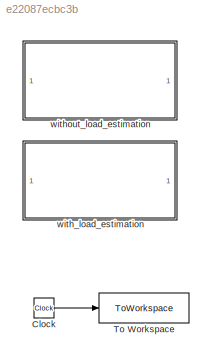
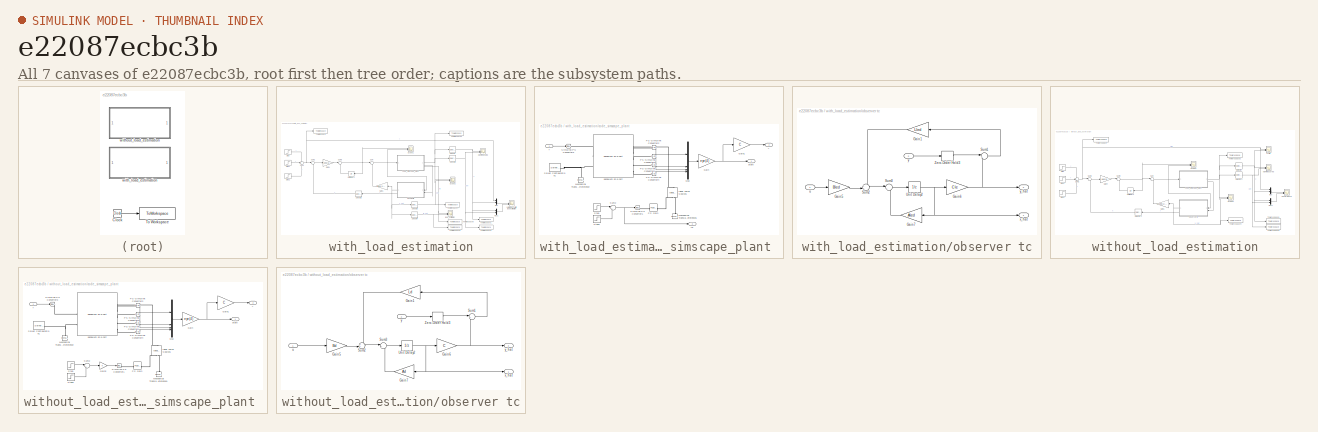
[diagram: thumbnail index - all 7 canvases of the model, root first then tree order]
MODEL slx_e22087ecbc3b
KIND model
CONFIG AbsTol = auto
CONFIG EnableMultiTasking = off
CONFIG FixedStep = auto
CONFIG MaxStep = auto
CONFIG MinStep = auto
CONFIG RelTol = 1e-3
CONFIG SampleTimeConstraint = Unconstrained
CONFIG SolverName = daessc
CONFIG StartTime = 0.0
CONFIG StopTime = simlength
BLOCK [Clock] Clock
BLOCK [ToWorkspace] To Workspace
  FixptAsFi = on
  MaxDataPoints = Nc
  SampleTime = tc
  VariableName = t
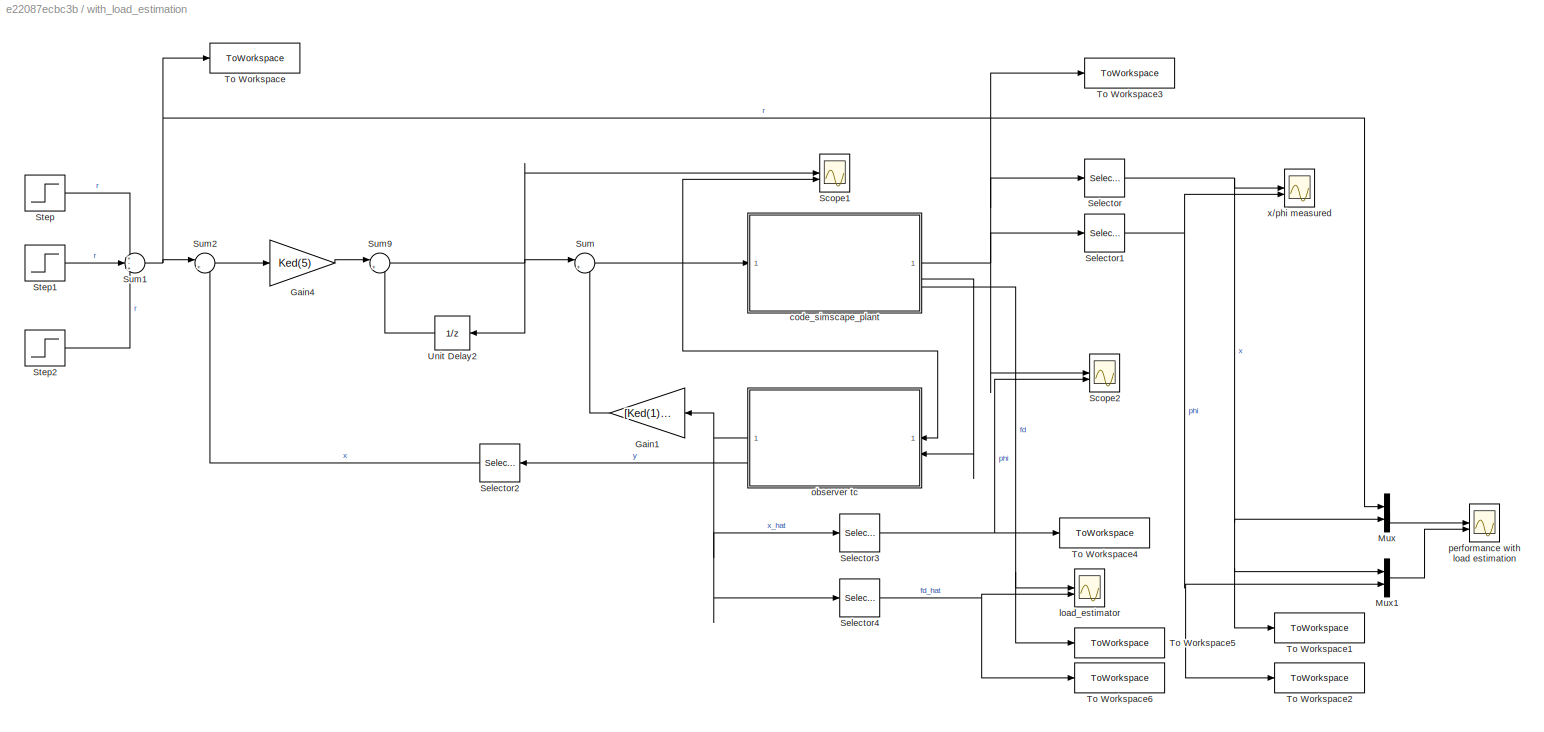
BLOCK [SubSystem] with_load_estimation
BLOCK [Gain] with_load_estimation/Gain1
  Gain = [Ked(1) Ked(2) Ked(3) Ked(4) 0]
  Multiplication = Matrix(K*u)
  NameLocation = top
BLOCK [Gain] with_load_estimation/Gain4
  Gain = Ked(5)
  NameLocation = top
BLOCK [Mux] with_load_estimation/Mux
  DisplayOption = bar
  Inputs = 2
BLOCK [Mux] with_load_estimation/Mux1
  DisplayOption = bar
  Inputs = 2
BLOCK [Scope] with_load_estimation/Scope1
  ActiveDisplayYMaximum = 131887.4556
  ActiveDisplayYMinimum = -131862.66233
  DataLoggingVariableName = ScopeData1
  Floating = off
  GraphicalSettings = {"GraphicalSettings":{"LegacySettings":true,"Style":{"AxesScalingProperties":{"ScaleAxesLimitsAtStop":false},"Style":{"AxesColor":"[0 0 0]","ChannelNames":["",""],"ColorOrder":"[1 1 0.0666666666666667;0.0745098039215686 0.623529411764706 1;1 0.411764705882353 0.16078431372549;0.392156862745098 0.831372549019608 0.0745098039215686;0.717647058823529 0.274509803921569 1;0.0588235294117647 1 1;1 0.074...<+482ch>
  LayoutDimensionsString = [2 1]
  MultipleDisplayCache = [{"MaxYLimMag":131887.4556,"MaxYLimReal":131887.4556,"MinYLimMag":0,"MinYLimReal":-131862.66233,"PlotAsMagnitudePhase":false,"ShowGrid":true,"ShowLegend":true,"Title":"%<SignalLabel>","YLabel":""},{"MaxYLimMag":9.54603,"MaxYLimReal":1013.83988,"MinYLimMag":0,"MinYLimReal":-586.68826,"PlotAsMagnitudePhase":false,"ShowGrid":true,"ShowLegend":true,"Title":"%<SignalLabel>","YLabel":""}]
  NumInputPorts = 2
  ShowLegend = on
  WasSavedAsWebScope = on
BLOCK [Scope] with_load_estimation/Scope2
  ActiveDisplayYMaximum = 2.75481
  ActiveDisplayYMinimum = -2.98633
  ContainerLayout = {"WindowBounds":[384,156,1280,768],"gridDimensions":{"w":1,"h":1},"tileCount":1,"tileCoverage":1,"columnWeights":1,"rowWeights":1,"tileOccupancy":{"children":[{"id":"/with_load_estimation/performance \nwith load estimation"},{"id":"/with_load_estimation/load_estimator"},{"id":"/with_load_estimation/Scope2"},{"id":"/without_load_estimation/performance"},{"id":"/without_load_estimation/Scope2"}]}}  <repeated x5 — deduplicated; at blocks: Scope2, load_estimator, performance with load estimation, performance>
  DataLoggingVariableName = ScopeData2
  Floating = off
  GraphicalSettings = {"GraphicalSettings":{"LegacySettings":true,"Style":{"AxesScalingProperties":{"ScaleAxesLimitsAtStop":false},"Style":{"AxesColor":"[0 0 0]","ChannelNames":["",""],"ColorOrder":"[1 1 0.0666666666666667;0.0745098039215686 0.623529411764706 1;1 0.411764705882353 0.16078431372549;0.392156862745098 0.831372549019608 0.0745098039215686;0.717647058823529 0.274509803921569 1;0.0588235294117647 1 1;1 0.074...<+955ch>
  LayoutDimensionsString = [2 1]
  MultipleDisplayCache = [{"MaxYLimMag":2.98633,"MaxYLimReal":2.75481,"MinYLimMag":0,"MinYLimReal":-2.98633,"PlotAsMagnitudePhase":false,"ShowGrid":true,"ShowLegend":true,"Title":"%<SignalLabel>","YLabel":""},{"MaxYLimMag":11.89829,"MaxYLimReal":2.36213,"MinYLimMag":0,"MinYLimReal":-2.45766,"PlotAsMagnitudePhase":false,"ShowGrid":true,"ShowLegend":true,"Title":"%<SignalLabel>","YLabel":""}]
  NumInputPorts = 2
  ScopeFrameLocation = container
  ShowLegend = on
  Visible = on
  WasSavedAsWebScope = on
  WindowPosition = [384.000000,156.000000,1280.000000,768.000000,]
BLOCK [Selector] with_load_estimation/Selector
  IndexOptions = Index vector (dialog)
  Indices = 1
  InputPortWidth = 4
  OutputSizes = 1
BLOCK [Selector] with_load_estimation/Selector1
  IndexOptions = Index vector (dialog)
  Indices = 3
  InputPortWidth = 4
  OutputSizes = 1
BLOCK [Selector] with_load_estimation/Selector2
  IndexOptions = Index vector (dialog)
  Indices = 1
  InputPortWidth = 2
  NameLocation = top
  OutputSizes = 1
BLOCK [Selector] with_load_estimation/Selector3
  IndexOptions = Index vector (dialog)
  Indices = [1 2 3 4]
  InputPortWidth = 5
  OutputSizes = 1
BLOCK [Selector] with_load_estimation/Selector4
  IndexOptions = Index vector (dialog)
  Indices = 5
  InputPortWidth = 5
  OutputSizes = 1
BLOCK [Step] with_load_estimation/Step
  SampleTime = 0
BLOCK [Step] with_load_estimation/Step1
  After = 2
  SampleTime = 0
  Time = 8
BLOCK [Step] with_load_estimation/Step2
  SampleTime = 0
  Time = 25
BLOCK [Sum] with_load_estimation/Sum
  Inputs = |+-
BLOCK [Sum] with_load_estimation/Sum1
  Inputs = +-+
BLOCK [Sum] with_load_estimation/Sum2
  Inputs = |+-
BLOCK [Sum] with_load_estimation/Sum9
  Inputs = |++
BLOCK [ToWorkspace] with_load_estimation/To Workspace
  FixptAsFi = on
  MaxDataPoints = Nc
  SampleTime = tc
  VariableName = x_ref_le_sim
BLOCK [ToWorkspace] with_load_estimation/To Workspace1
  FixptAsFi = on
  MaxDataPoints = Nc
  SampleTime = tc
  VariableName = x_le_sim
BLOCK [ToWorkspace] with_load_estimation/To Workspace2
  FixptAsFi = on
  MaxDataPoints = Nc
  SampleTime = tc
  VariableName = phi_le_sim
BLOCK [ToWorkspace] with_load_estimation/To Workspace3
  FixptAsFi = on
  MaxDataPoints = Nc
  SampleTime = tc
  VariableName = xstate_le_sim
BLOCK [ToWorkspace] with_load_estimation/To Workspace4
  FixptAsFi = on
  MaxDataPoints = Nc
  SampleTime = tc
  VariableName = xstate_hat_le_sim
BLOCK [ToWorkspace] with_load_estimation/To Workspace5
  FixptAsFi = on
  MaxDataPoints = Nc
  SampleTime = tc
  VariableName = load_sim
BLOCK [ToWorkspace] with_load_estimation/To Workspace6
  FixptAsFi = on
  MaxDataPoints = Nc
  SampleTime = tc
  VariableName = load_hat_sim
BLOCK [UnitDelay] with_load_estimation/Unit Delay2
  HasFrameUpgradeWarning = on
  SampleTime = ts
BLOCK [SubSystem] with_load_estimation/code_simscape_plant 
BLOCK [Gain] with_load_estimation/code_simscape_plant /Gain
  Gain = eye(4)
  Multiplication = Matrix(K*u)
BLOCK [Gain] with_load_estimation/code_simscape_plant /Gain1
  Gain = C
  Multiplication = Matrix(K*u)
BLOCK [Reference] with_load_estimation/code_simscape_plant /Ideal Force Source1  REF=fl_lib/Mechanical/Mechanical Sources/Ideal Force Source
  NameLocation = right
  SourceBlock = fl_lib/Mechanical/Mechanical Sources/Ideal Force Source
  SourceType = Ideal Force Source
BLOCK [Reference] with_load_estimation/code_simscape_plant /Mechanical Translational Reference  REF=fl_lib/Mechanical/Translational
Elements/Mechanical
Translational
Reference
  NameLocation = right
  SourceBlock = fl_lib/Mechanical/Translational\nElements/Mechanical\nTranslational\nReference
  SourceType = Mechanical\nTranslational\nReference
BLOCK [Reference] with_load_estimation/code_simscape_plant /Mechanical Translational Reference1  REF=fl_lib/Mechanical/Translational
Elements/Mechanical
Translational
Reference
  NameLocation = right
  SourceBlock = fl_lib/Mechanical/Translational\nElements/Mechanical\nTranslational\nReference
  SourceType = Mechanical\nTranslational\nReference
BLOCK [Mux] with_load_estimation/code_simscape_plant /Mux
  DisplayOption = bar
BLOCK [Reference] with_load_estimation/code_simscape_plant /PS Gain  REF=fl_lib/Physical Signals/Functions/PS Gain
  SourceBlock = fl_lib/Physical Signals/Functions/PS Gain
  SourceType = PS Gain
BLOCK [Reference] with_load_estimation/code_simscape_plant /PS-Simulink Converter1  REF=nesl_utility/PS-Simulink
Converter
  NameLocation = top
  SourceBlock = nesl_utility/PS-Simulink\nConverter
  SourceType = PS-Simulink\nConverter
BLOCK [Reference] with_load_estimation/code_simscape_plant /PS-Simulink Converter2  REF=nesl_utility/PS-Simulink
Converter
  SourceBlock = nesl_utility/PS-Simulink\nConverter
  SourceType = PS-Simulink\nConverter
BLOCK [Reference] with_load_estimation/code_simscape_plant /PS-Simulink Converter3  REF=nesl_utility/PS-Simulink
Converter
  NameLocation = top
  SourceBlock = nesl_utility/PS-Simulink\nConverter
  SourceType = PS-Simulink\nConverter
BLOCK [Reference] with_load_estimation/code_simscape_plant /PS-Simulink Converter4  REF=nesl_utility/PS-Simulink
Converter
  NameLocation = top
  SourceBlock = nesl_utility/PS-Simulink\nConverter
  SourceType = PS-Simulink\nConverter
BLOCK [Reference] with_load_estimation/code_simscape_plant /Simulink-PS Converter1  REF=nesl_utility/Simulink-PS
Converter
  SourceBlock = nesl_utility/Simulink-PS\nConverter
  SourceType = Simulink-PS\nConverter
BLOCK [Reference] with_load_estimation/code_simscape_plant /Simulink-PS Converter3  REF=nesl_utility/Simulink-PS
Converter
  SourceBlock = nesl_utility/Simulink-PS\nConverter
  SourceType = Simulink-PS\nConverter
BLOCK [Reference] with_load_estimation/code_simscape_plant /Solver Configuration1  REF=nesl_utility/Solver
Configuration
  SourceBlock = nesl_utility/Solver\nConfiguration
  SourceType = Solver\nConfiguration
BLOCK [Step] with_load_estimation/code_simscape_plant /Step
  After = 1000
  SampleTime = 0
  Time = 17.5
BLOCK [Step] with_load_estimation/code_simscape_plant /Step1
  After = 1000
  SampleTime = 0
  Time = 30
BLOCK [Sum] with_load_estimation/code_simscape_plant /Sum2
  Inputs = |+-
BLOCK [Inport] with_load_estimation/code_simscape_plant /f
BLOCK [Outport] with_load_estimation/code_simscape_plant /fd
  Port = 3
BLOCK [Reference] with_load_estimation/code_simscape_plant /pendulum on a cart  REF=pendulum_on_a_cart_lib/pendulum on a cart
  SourceBlock = pendulum_on_a_cart_lib/pendulum on a cart
  SourceType = pendulum on a cart
BLOCK [Outport] with_load_estimation/code_simscape_plant /state
BLOCK [Outport] with_load_estimation/code_simscape_plant /y
  Port = 2
BLOCK [Scope] with_load_estimation/load_estimator
  ActiveDisplayYMaximum = 1125
  ActiveDisplayYMinimum = -125
  DataLoggingVariableName = ScopeData1
  Floating = off
  GraphicalSettings = {"GraphicalSettings":{"LegacySettings":true,"Style":{"AxesScalingProperties":{"ScaleAxesLimitsAtStop":false},"Style":{"AxesColor":"[0 0 0]","ChannelNames":["",""],"ColorOrder":"[1 1 0.0666666666666667;0.0745098039215686 0.623529411764706 1;1 0.411764705882353 0.16078431372549;0.392156862745098 0.831372549019608 0.0745098039215686;0.717647058823529 0.274509803921569 1;0.0588235294117647 1 1;1 0.074...<+910ch>
  LayoutDimensionsString = [2 1]
  MultipleDisplayCache = [{"MaxYLimMag":1125,"MaxYLimReal":1125,"MinYLimMag":0,"MinYLimReal":-125,"PlotAsMagnitudePhase":false,"ShowGrid":true,"ShowLegend":true,"Title":"%<SignalLabel>","YLabel":""},{"MaxYLimMag":11.89829,"MaxYLimReal":1125.18877,"MinYLimMag":0,"MinYLimReal":-126.69574,"PlotAsMagnitudePhase":false,"ShowGrid":true,"ShowLegend":true,"Title":"%<SignalLabel>","YLabel":""}]
  NumInputPorts = 2
  ScopeFrameLocation = container
  ShowLegend = on
  Visible = on
  WasSavedAsWebScope = on
  WindowPosition = [384.000000,156.000000,1280.000000,768.000000,]
BLOCK [SubSystem] with_load_estimation/observer tc
  NameLocation = top
BLOCK [Gain] with_load_estimation/observer tc/Gain1
  Gain = Lled
  Multiplication = Matrix(K*u)
  NameLocation = top
BLOCK [Gain] with_load_estimation/observer tc/Gain5
  Gain = Bled
  Multiplication = Matrix(K*u)
BLOCK [Gain] with_load_estimation/observer tc/Gain6
  Gain = Cle
  Multiplication = Matrix(K*u)
BLOCK [Gain] with_load_estimation/observer tc/Gain7
  Gain = Aled
  Multiplication = Matrix(K*u)
BLOCK [Sum] with_load_estimation/observer tc/Sum1
  Inputs = |+-
BLOCK [Sum] with_load_estimation/observer tc/Sum2
  Inputs = ++|
BLOCK [Sum] with_load_estimation/observer tc/Sum3
  Inputs = |++
BLOCK [UnitDelay] with_load_estimation/observer tc/Unit Delay2
  HasFrameUpgradeWarning = on
  SampleTime = ts
BLOCK [ZeroOrderHold] with_load_estimation/observer tc/Zero-Order Hold3
  SampleTime = ts
BLOCK [Inport] with_load_estimation/observer tc/u
BLOCK [Outport] with_load_estimation/observer tc/x_hat
BLOCK [Inport] with_load_estimation/observer tc/y
  Port = 2
BLOCK [Outport] with_load_estimation/observer tc/y_hat
  Port = 2
BLOCK [Scope] with_load_estimation/performance with load estimation
  ActiveDisplayYMaximum = 1.56939
  ActiveDisplayYMinimum = -2.12881
  DataLoggingVariableName = ScopeData1
  Floating = off
  GraphicalSettings = {"GraphicalSettings":{"LegacySettings":true,"Style":{"AxesScalingProperties":{"ScaleAxesLimitsAtStop":false},"Style":{"AxesColor":"[0 0 0]","ChannelNames":["",""],"ColorOrder":"[1 1 0.0666666666666667;0.0745098039215686 0.623529411764706 1;1 0.411764705882353 0.16078431372549;0.392156862745098 0.831372549019608 0.0745098039215686;0.717647058823529 0.274509803921569 1;0.0588235294117647 1 1;1 0.074...<+627ch>
  LayoutDimensionsString = [2 1]
  MultipleDisplayCache = [{"MaxYLimMag":1.25,"MaxYLimReal":1.56939,"MinYLimMag":0,"MinYLimReal":-2.12881,"PlotAsMagnitudePhase":false,"ShowGrid":true,"ShowLegend":true,"Title":"%<SignalLabel>","YLabel":""},{"MaxYLimMag":2.12881,"MaxYLimReal":1.56939,"MinYLimMag":0,"MinYLimReal":-2.12881,"PlotAsMagnitudePhase":false,"ShowGrid":true,"ShowLegend":true,"Title":"%<SignalLabel>","YLabel":""}]
  NumInputPorts = 2
  ScopeFrameLocation = container
  ShowLegend = on
  Visible = on
  WasSavedAsWebScope = on
  WindowPosition = [384.000000,156.000000,1280.000000,768.000000,]
BLOCK [Scope] with_load_estimation/x//phi measured
  ActiveDisplayYMaximum = 1.504
  ActiveDisplayYMinimum = -1.52811
  DataLoggingVariableName = ScopeData1
  Floating = off
  GraphicalSettings = {"GraphicalSettings":{"LegacySettings":true,"Style":{"AxesScalingProperties":{"ScaleAxesLimitsAtStop":false},"Style":{"AxesColor":"[0 0 0]","ChannelNames":["",""],"ColorOrder":"[1 1 0.0666666666666667;0.0745098039215686 0.623529411764706 1;1 0.411764705882353 0.16078431372549;0.392156862745098 0.831372549019608 0.0745098039215686;0.717647058823529 0.274509803921569 1;0.0588235294117647 1 1;1 0.074...<+499ch>  <repeated x3 — deduplicated; at blocks: x/phi measured, xref/x>
  LayoutDimensionsString = [2 1]
  MultipleDisplayCache = [{"MaxYLimMag":1.52811,"MaxYLimReal":1.504,"MinYLimMag":0,"MinYLimReal":-1.52811,"PlotAsMagnitudePhase":false,"ShowGrid":true,"ShowLegend":true,"Title":"%<SignalLabel>","YLabel":""},{"MaxYLimMag":9.54603,"MaxYLimReal":0.16306,"MinYLimMag":0,"MinYLimReal":-0.23804,"PlotAsMagnitudePhase":false,"ShowGrid":true,"ShowLegend":true,"Title":"%<SignalLabel>","YLabel":""}]
  NumInputPorts = 2
  ScopeFrameLocation = window
  ShowLegend = on
  Visible = on
  WasSavedAsWebScope = on
  WindowPosition = [886.000000,452.000000,560.000000,420.000000,]
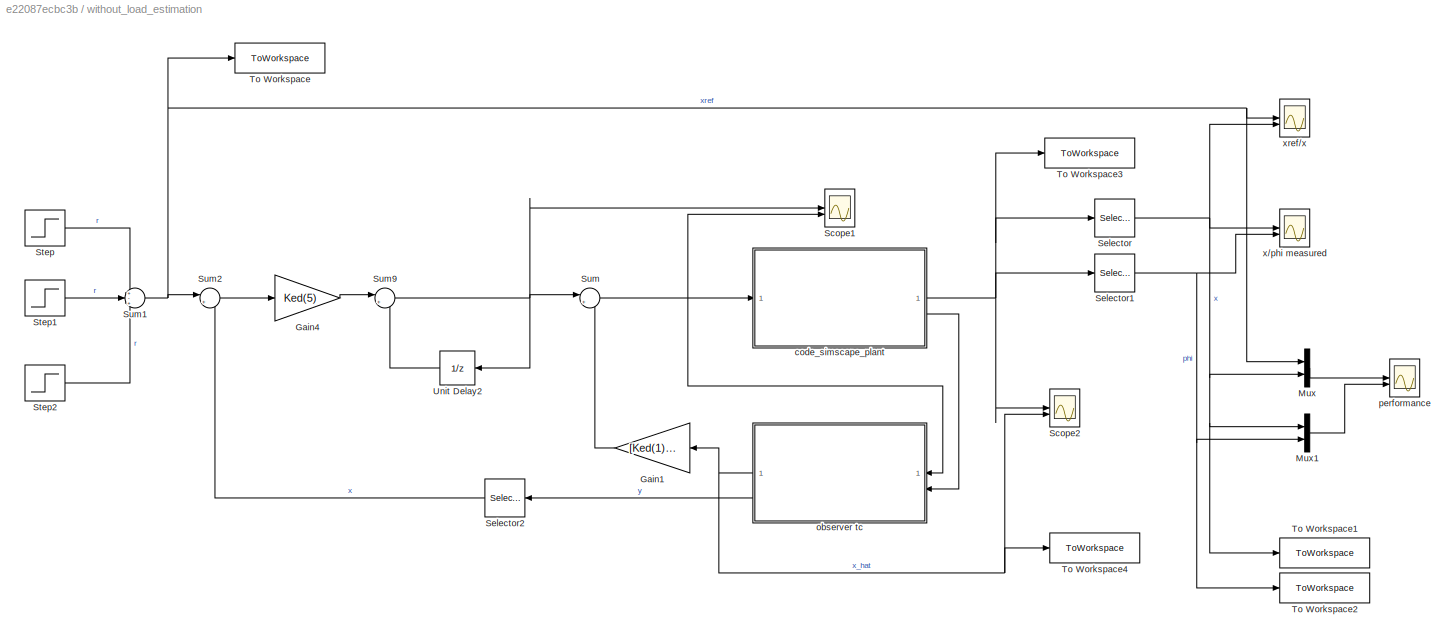
BLOCK [SubSystem] without_load_estimation
BLOCK [Gain] without_load_estimation/Gain1
  Gain = [Ked(1) Ked(2) Ked(3) Ked(4)]
  Multiplication = Matrix(K*u)
  NameLocation = top
BLOCK [Gain] without_load_estimation/Gain4
  Gain = Ked(5)
  NameLocation = top
BLOCK [Mux] without_load_estimation/Mux
  DisplayOption = bar
  Inputs = 2
BLOCK [Mux] without_load_estimation/Mux1
  DisplayOption = bar
  Inputs = 2
BLOCK [Scope] without_load_estimation/Scope1
  ActiveDisplayYMaximum = 131887.4556
  ActiveDisplayYMinimum = -131862.66233
  DataLoggingVariableName = ScopeData1
  Floating = off
  GraphicalSettings = {"GraphicalSettings":{"LegacySettings":true,"Style":{"AxesScalingProperties":{"ScaleAxesLimitsAtStop":false},"Style":{"AxesColor":"[0 0 0]","ChannelNames":["",""],"ColorOrder":"[1 1 0.0666666666666667;0.0745098039215686 0.623529411764706 1;1 0.411764705882353 0.16078431372549;0.392156862745098 0.831372549019608 0.0745098039215686;0.717647058823529 0.274509803921569 1;0.0588235294117647 1 1;1 0.074...<+482ch>
  LayoutDimensionsString = [2 1]
  MultipleDisplayCache = [{"MaxYLimMag":131887.4556,"MaxYLimReal":131887.4556,"MinYLimMag":0,"MinYLimReal":-131862.66233,"PlotAsMagnitudePhase":false,"ShowGrid":true,"ShowLegend":true,"Title":"%<SignalLabel>","YLabel":""},{"MaxYLimMag":9.54603,"MaxYLimReal":1013.83988,"MinYLimMag":0,"MinYLimReal":-586.68826,"PlotAsMagnitudePhase":false,"ShowGrid":true,"ShowLegend":true,"Title":"%<SignalLabel>","YLabel":""}]
  NumInputPorts = 2
  ShowLegend = on
  WasSavedAsWebScope = on
BLOCK [Scope] without_load_estimation/Scope2
  ActiveDisplayYMaximum = 2.64312
  ActiveDisplayYMinimum = -3.23622
  DataLoggingVariableName = ScopeData2
  Floating = off
  GraphicalSettings = {"GraphicalSettings":{"LegacySettings":true,"Style":{"AxesScalingProperties":{"ScaleAxesLimitsAtStop":false},"Style":{"AxesColor":"[0 0 0]","ChannelNames":["",""],"ColorOrder":"[1 1 0.0666666666666667;0.0745098039215686 0.623529411764706 1;1 0.411764705882353 0.16078431372549;0.392156862745098 0.831372549019608 0.0745098039215686;0.717647058823529 0.274509803921569 1;0.0588235294117647 1 1;1 0.074...<+955ch>
  LayoutDimensionsString = [2 1]
  MultipleDisplayCache = [{"MaxYLimMag":3.23622,"MaxYLimReal":2.64312,"MinYLimMag":0,"MinYLimReal":-3.23622,"PlotAsMagnitudePhase":false,"ShowGrid":true,"ShowLegend":true,"Title":"%<SignalLabel>","YLabel":""},{"MaxYLimMag":11.89829,"MaxYLimReal":4.12643,"MinYLimMag":0,"MinYLimReal":-4.73326,"PlotAsMagnitudePhase":false,"ShowGrid":true,"ShowLegend":true,"Title":"%<SignalLabel>","YLabel":""}]
  NumInputPorts = 2
  ScopeFrameLocation = container
  ShowLegend = on
  Visible = on
  WasSavedAsWebScope = on
  WindowPosition = [384.000000,156.000000,1280.000000,768.000000,]
BLOCK [Selector] without_load_estimation/Selector
  IndexOptions = Index vector (dialog)
  Indices = 1
  InputPortWidth = 4
  OutputSizes = 1
BLOCK [Selector] without_load_estimation/Selector1
  IndexOptions = Index vector (dialog)
  Indices = 3
  InputPortWidth = 4
  OutputSizes = 1
BLOCK [Selector] without_load_estimation/Selector2
  IndexOptions = Index vector (dialog)
  Indices = 1
  InputPortWidth = 2
  NameLocation = top
  OutputSizes = 1
BLOCK [Step] without_load_estimation/Step
  SampleTime = 0
BLOCK [Step] without_load_estimation/Step1
  After = 2
  SampleTime = 0
  Time = 8
BLOCK [Step] without_load_estimation/Step2
  SampleTime = 0
  Time = 25
BLOCK [Sum] without_load_estimation/Sum
  Inputs = |+-
BLOCK [Sum] without_load_estimation/Sum1
  Inputs = +-+
BLOCK [Sum] without_load_estimation/Sum2
  Inputs = |+-
BLOCK [Sum] without_load_estimation/Sum9
  Inputs = |++
BLOCK [ToWorkspace] without_load_estimation/To Workspace
  FixptAsFi = on
  MaxDataPoints = Nc
  SampleTime = tc
  VariableName = x_ref_sim
BLOCK [ToWorkspace] without_load_estimation/To Workspace1
  FixptAsFi = on
  MaxDataPoints = Nc
  SampleTime = tc
  VariableName = x_sim
BLOCK [ToWorkspace] without_load_estimation/To Workspace2
  FixptAsFi = on
  MaxDataPoints = Nc
  SampleTime = tc
  VariableName = phi_sim
BLOCK [ToWorkspace] without_load_estimation/To Workspace3
  FixptAsFi = on
  MaxDataPoints = Nc
  SampleTime = tc
  VariableName = xstate_sim
BLOCK [ToWorkspace] without_load_estimation/To Workspace4
  FixptAsFi = on
  MaxDataPoints = Nc
  SampleTime = tc
  VariableName = xstate_hat_sim
BLOCK [UnitDelay] without_load_estimation/Unit Delay2
  HasFrameUpgradeWarning = on
  SampleTime = ts
BLOCK [SubSystem] without_load_estimation/code_simscape_plant 
BLOCK [Gain] without_load_estimation/code_simscape_plant /Gain
  Gain = eye(4)
  Multiplication = Matrix(K*u)
BLOCK [Gain] without_load_estimation/code_simscape_plant /Gain1
  Gain = C
  Multiplication = Matrix(K*u)
BLOCK [Gain] without_load_estimation/code_simscape_plant /Gain2
BLOCK [Reference] without_load_estimation/code_simscape_plant /Ideal Force Source1  REF=fl_lib/Mechanical/Mechanical Sources/Ideal Force Source
  NameLocation = right
  SourceBlock = fl_lib/Mechanical/Mechanical Sources/Ideal Force Source
  SourceType = Ideal Force Source
BLOCK [Reference] without_load_estimation/code_simscape_plant /Mechanical Translational Reference  REF=fl_lib/Mechanical/Translational
Elements/Mechanical
Translational
Reference
  NameLocation = right
  SourceBlock = fl_lib/Mechanical/Translational\nElements/Mechanical\nTranslational\nReference
  SourceType = Mechanical\nTranslational\nReference
BLOCK [Reference] without_load_estimation/code_simscape_plant /Mechanical Translational Reference1  REF=fl_lib/Mechanical/Translational
Elements/Mechanical
Translational
Reference
  NameLocation = right
  SourceBlock = fl_lib/Mechanical/Translational\nElements/Mechanical\nTranslational\nReference
  SourceType = Mechanical\nTranslational\nReference
BLOCK [Mux] without_load_estimation/code_simscape_plant /Mux
  DisplayOption = bar
BLOCK [Reference] without_load_estimation/code_simscape_plant /PS Gain  REF=fl_lib/Physical Signals/Functions/PS Gain
  SourceBlock = fl_lib/Physical Signals/Functions/PS Gain
  SourceType = PS Gain
BLOCK [Reference] without_load_estimation/code_simscape_plant /PS-Simulink Converter1  REF=nesl_utility/PS-Simulink
Converter
  NameLocation = top
  SourceBlock = nesl_utility/PS-Simulink\nConverter
  SourceType = PS-Simulink\nConverter
BLOCK [Reference] without_load_estimation/code_simscape_plant /PS-Simulink Converter2  REF=nesl_utility/PS-Simulink
Converter
  SourceBlock = nesl_utility/PS-Simulink\nConverter
  SourceType = PS-Simulink\nConverter
BLOCK [Reference] without_load_estimation/code_simscape_plant /PS-Simulink Converter3  REF=nesl_utility/PS-Simulink
Converter
  NameLocation = top
  SourceBlock = nesl_utility/PS-Simulink\nConverter
  SourceType = PS-Simulink\nConverter
BLOCK [Reference] without_load_estimation/code_simscape_plant /PS-Simulink Converter4  REF=nesl_utility/PS-Simulink
Converter
  NameLocation = top
  SourceBlock = nesl_utility/PS-Simulink\nConverter
  SourceType = PS-Simulink\nConverter
BLOCK [Reference] without_load_estimation/code_simscape_plant /Simulink-PS Converter1  REF=nesl_utility/Simulink-PS
Converter
  SourceBlock = nesl_utility/Simulink-PS\nConverter
  SourceType = Simulink-PS\nConverter
BLOCK [Reference] without_load_estimation/code_simscape_plant /Simulink-PS Converter3  REF=nesl_utility/Simulink-PS
Converter
  SourceBlock = nesl_utility/Simulink-PS\nConverter
  SourceType = Simulink-PS\nConverter
BLOCK [Reference] without_load_estimation/code_simscape_plant /Solver Configuration1  REF=nesl_utility/Solver
Configuration
  SourceBlock = nesl_utility/Solver\nConfiguration
  SourceType = Solver\nConfiguration
BLOCK [Step] without_load_estimation/code_simscape_plant /Step
  After = 1000
  SampleTime = 0
  Time = 17.5
BLOCK [Step] without_load_estimation/code_simscape_plant /Step1
  After = 1000
  SampleTime = 0
  Time = 30
BLOCK [Sum] without_load_estimation/code_simscape_plant /Sum2
  Inputs = |+-
BLOCK [Inport] without_load_estimation/code_simscape_plant /f
BLOCK [Reference] without_load_estimation/code_simscape_plant /pendulum on a cart  REF=pendulum_on_a_cart_lib/pendulum on a cart
  SourceBlock = pendulum_on_a_cart_lib/pendulum on a cart
  SourceType = pendulum on a cart
BLOCK [Outport] without_load_estimation/code_simscape_plant /state
BLOCK [Outport] without_load_estimation/code_simscape_plant /y
  Port = 2
BLOCK [SubSystem] without_load_estimation/observer tc
  NameLocation = top
BLOCK [Gain] without_load_estimation/observer tc/Gain1
  Gain = Ld
  Multiplication = Matrix(K*u)
  NameLocation = top
BLOCK [Gain] without_load_estimation/observer tc/Gain5
  Gain = Bd
  Multiplication = Matrix(K*u)
BLOCK [Gain] without_load_estimation/observer tc/Gain6
  Gain = C
  Multiplication = Matrix(K*u)
BLOCK [Gain] without_load_estimation/observer tc/Gain7
  Gain = Ad
  Multiplication = Matrix(K*u)
BLOCK [Sum] without_load_estimation/observer tc/Sum1
  Inputs = |+-
BLOCK [Sum] without_load_estimation/observer tc/Sum2
  Inputs = ++|
BLOCK [Sum] without_load_estimation/observer tc/Sum3
  Inputs = |++
BLOCK [UnitDelay] without_load_estimation/observer tc/Unit Delay2
  HasFrameUpgradeWarning = on
  SampleTime = ts
BLOCK [ZeroOrderHold] without_load_estimation/observer tc/Zero-Order Hold3
  SampleTime = ts
BLOCK [Inport] without_load_estimation/observer tc/u
BLOCK [Outport] without_load_estimation/observer tc/x_hat
BLOCK [Inport] without_load_estimation/observer tc/y
  Port = 2
BLOCK [Outport] without_load_estimation/observer tc/y_hat
  Port = 2
BLOCK [Scope] without_load_estimation/performance
  ActiveDisplayYMaximum = 1.66242
  ActiveDisplayYMinimum = -1.54321
  DataLoggingVariableName = ScopeData1
  Floating = off
  GraphicalSettings = {"GraphicalSettings":{"LegacySettings":true,"Style":{"AxesScalingProperties":{"ScaleAxesLimitsAtStop":false},"Style":{"AxesColor":"[0 0 0]","ChannelNames":["",""],"ColorOrder":"[1 1 0.0666666666666667;0.0745098039215686 0.623529411764706 1;1 0.411764705882353 0.16078431372549;0.392156862745098 0.831372549019608 0.0745098039215686;0.717647058823529 0.274509803921569 1;0.0588235294117647 1 1;1 0.074...<+627ch>
  LayoutDimensionsString = [2 1]
  MultipleDisplayCache = [{"MaxYLimMag":1.66242,"MaxYLimReal":1.66242,"MinYLimMag":0,"MinYLimReal":-1.54321,"PlotAsMagnitudePhase":false,"ShowGrid":true,"ShowLegend":true,"Title":"%<SignalLabel>","YLabel":""},{"MaxYLimMag":2.12881,"MaxYLimReal":1.66242,"MinYLimMag":0,"MinYLimReal":-1.54321,"PlotAsMagnitudePhase":false,"ShowGrid":true,"ShowLegend":true,"Title":"%<SignalLabel>","YLabel":""}]
  NumInputPorts = 2
  ScopeFrameLocation = container
  ShowLegend = on
  Visible = on
  WasSavedAsWebScope = on
  WindowPosition = [384.000000,156.000000,1280.000000,768.000000,]
BLOCK [Scope] without_load_estimation/x//phi measured
  ActiveDisplayYMaximum = 1.56939
  ActiveDisplayYMinimum = -2.12881
  DataLoggingVariableName = ScopeData1
  Floating = off
  LayoutDimensionsString = [2 1]
  MultipleDisplayCache = [{"MaxYLimMag":2.12881,"MaxYLimReal":1.56939,"MinYLimMag":0,"MinYLimReal":-2.12881,"PlotAsMagnitudePhase":false,"ShowGrid":true,"ShowLegend":true,"Title":"%<SignalLabel>","YLabel":""},{"MaxYLimMag":9.54603,"MaxYLimReal":0.49292,"MinYLimMag":0,"MinYLimReal":-0.41012,"PlotAsMagnitudePhase":false,"ShowGrid":true,"ShowLegend":true,"Title":"%<SignalLabel>","YLabel":""}]
  NumInputPorts = 2
  ShowLegend = on
  WasSavedAsWebScope = on
  WindowPosition = [989 441 560 420]
BLOCK [Scope] without_load_estimation/xref//x
  ActiveDisplayYMaximum = 1.25
  ActiveDisplayYMinimum = -1.25
  DataLoggingVariableName = ScopeData1
  Floating = off
  LayoutDimensionsString = [2 1]
  MultipleDisplayCache = [{"MaxYLimMag":1.25,"MaxYLimReal":1.25,"MinYLimMag":0,"MinYLimReal":-1.25,"PlotAsMagnitudePhase":false,"ShowGrid":true,"ShowLegend":true,"Title":"%<SignalLabel>","YLabel":""},{"MaxYLimMag":9.54603,"MaxYLimReal":1.56864,"MinYLimMag":0,"MinYLimReal":-2.12837,"PlotAsMagnitudePhase":false,"ShowGrid":true,"ShowLegend":true,"Title":"%<SignalLabel>","YLabel":""}]
  NumInputPorts = 2
  ShowLegend = on
  WasSavedAsWebScope = on
  WindowPosition = [1804 503 387 428]
LINE Clock:1 -> To Workspace:1
LINE with_load_estimation/Gain1:1 -> with_load_estimation/Sum:2
LINE with_load_estimation/Gain4:1 -> with_load_estimation/Sum9:1
LINE with_load_estimation/Mux1:1 -> with_load_estimation/performance with load estimation:2
LINE with_load_estimation/Mux:1 -> with_load_estimation/performance with load estimation:1
NET with_load_estimation/Selector1:1 -> with_load_estimation/Mux1:2, with_load_estimation/To Workspace2:1, with_load_estimation/x//phi measured:2
LINE with_load_estimation/Selector2:1 -> with_load_estimation/Sum2:2
NET with_load_estimation/Selector3:1 -> with_load_estimation/Scope2:2, with_load_estimation/To Workspace4:1
NET with_load_estimation/Selector4:1 -> with_load_estimation/To Workspace6:1, with_load_estimation/load_estimator:2
NET with_load_estimation/Selector:1 -> with_load_estimation/Mux1:1, with_load_estimation/Mux:2, with_load_estimation/To Workspace1:1, with_load_estimation/x//phi measured:1
LINE with_load_estimation/Step1:1 -> with_load_estimation/Sum1:2
LINE with_load_estimation/Step2:1 -> with_load_estimation/Sum1:3
LINE with_load_estimation/Step:1 -> with_load_estimation/Sum1:1
NET with_load_estimation/Sum1:1 -> with_load_estimation/Mux:1, with_load_estimation/Sum2:1, with_load_estimation/To Workspace:1
LINE with_load_estimation/Sum2:1 -> with_load_estimation/Gain4:1
NET with_load_estimation/Sum9:1 -> with_load_estimation/Scope1:1, with_load_estimation/Sum:1, with_load_estimation/Unit Delay2:1
NET with_load_estimation/Sum:1 -> with_load_estimation/Scope1:2, with_load_estimation/code_simscape_plant :1, with_load_estimation/observer tc:1
LINE with_load_estimation/Unit Delay2:1 -> with_load_estimation/Sum9:2
LINE with_load_estimation/code_simscape_plant /Gain1:1 -> with_load_estimation/code_simscape_plant /y:1
NET with_load_estimation/code_simscape_plant /Gain:1 -> with_load_estimation/code_simscape_plant /Gain1:1, with_load_estimation/code_simscape_plant /state:1
LINE with_load_estimation/code_simscape_plant /Mux:1 -> with_load_estimation/code_simscape_plant /Gain:1
LINE with_load_estimation/code_simscape_plant /PS-Simulink Converter1:1 -> with_load_estimation/code_simscape_plant /Mux:3
LINE with_load_estimation/code_simscape_plant /PS-Simulink Converter2:1 -> with_load_estimation/code_simscape_plant /Mux:1
LINE with_load_estimation/code_simscape_plant /PS-Simulink Converter3:1 -> with_load_estimation/code_simscape_plant /Mux:2
LINE with_load_estimation/code_simscape_plant /PS-Simulink Converter4:1 -> with_load_estimation/code_simscape_plant /Mux:4
LINE with_load_estimation/code_simscape_plant /Step1:1 -> with_load_estimation/code_simscape_plant /Sum2:2
LINE with_load_estimation/code_simscape_plant /Step:1 -> with_load_estimation/code_simscape_plant /Sum2:1
NET with_load_estimation/code_simscape_plant /Sum2:1 -> with_load_estimation/code_simscape_plant /Simulink-PS Converter1:1, with_load_estimation/code_simscape_plant /fd:1
LINE with_load_estimation/code_simscape_plant /f:1 -> with_load_estimation/code_simscape_plant /Simulink-PS Converter3:1
NET with_load_estimation/code_simscape_plant :1 -> with_load_estimation/Scope2:1, with_load_estimation/Selector1:1, with_load_estimation/Selector:1, with_load_estimation/To Workspace3:1
LINE with_load_estimation/code_simscape_plant :2 -> with_load_estimation/observer tc:2
NET with_load_estimation/code_simscape_plant :3 -> with_load_estimation/To Workspace5:1, with_load_estimation/load_estimator:1
LINE with_load_estimation/observer tc/Gain1:1 -> with_load_estimation/observer tc/Sum2:1
LINE with_load_estimation/observer tc/Gain5:1 -> with_load_estimation/observer tc/Sum2:2
NET with_load_estimation/observer tc/Gain6:1 -> with_load_estimation/observer tc/Sum1:2, with_load_estimation/observer tc/y_hat:1
LINE with_load_estimation/observer tc/Gain7:1 -> with_load_estimation/observer tc/Sum3:2
LINE with_load_estimation/observer tc/Sum1:1 -> with_load_estimation/observer tc/Gain1:1
LINE with_load_estimation/observer tc/Sum2:1 -> with_load_estimation/observer tc/Sum3:1
LINE with_load_estimation/observer tc/Sum3:1 -> with_load_estimation/observer tc/Unit Delay2:1
NET with_load_estimation/observer tc/Unit Delay2:1 -> with_load_estimation/observer tc/Gain6:1, with_load_estimation/observer tc/Gain7:1, with_load_estimation/observer tc/x_hat:1
LINE with_load_estimation/observer tc/Zero-Order Hold3:1 -> with_load_estimation/observer tc/Sum1:1
LINE with_load_estimation/observer tc/u:1 -> with_load_estimation/observer tc/Gain5:1
LINE with_load_estimation/observer tc/y:1 -> with_load_estimation/observer tc/Zero-Order Hold3:1
NET with_load_estimation/observer tc:1 -> with_load_estimation/Gain1:1, with_load_estimation/Selector3:1, with_load_estimation/Selector4:1
LINE with_load_estimation/observer tc:2 -> with_load_estimation/Selector2:1
LINE without_load_estimation/Gain1:1 -> without_load_estimation/Sum:2
LINE without_load_estimation/Gain4:1 -> without_load_estimation/Sum9:1
LINE without_load_estimation/Mux1:1 -> without_load_estimation/performance:2
LINE without_load_estimation/Mux:1 -> without_load_estimation/performance:1
NET without_load_estimation/Selector1:1 -> without_load_estimation/Mux1:2, without_load_estimation/To Workspace2:1, without_load_estimation/x//phi measured:2
LINE without_load_estimation/Selector2:1 -> without_load_estimation/Sum2:2
NET without_load_estimation/Selector:1 -> without_load_estimation/Mux1:1, without_load_estimation/Mux:2, without_load_estimation/To Workspace1:1, without_load_estimation/x//phi measured:1, without_load_estimation/xref//x:2
LINE without_load_estimation/Step1:1 -> without_load_estimation/Sum1:2
LINE without_load_estimation/Step2:1 -> without_load_estimation/Sum1:3
LINE without_load_estimation/Step:1 -> without_load_estimation/Sum1:1
NET without_load_estimation/Sum1:1 -> without_load_estimation/Mux:1, without_load_estimation/Sum2:1, without_load_estimation/To Workspace:1, without_load_estimation/xref//x:1
LINE without_load_estimation/Sum2:1 -> without_load_estimation/Gain4:1
NET without_load_estimation/Sum9:1 -> without_load_estimation/Scope1:1, without_load_estimation/Sum:1, without_load_estimation/Unit Delay2:1
NET without_load_estimation/Sum:1 -> without_load_estimation/Scope1:2, without_load_estimation/code_simscape_plant :1, without_load_estimation/observer tc:1
LINE without_load_estimation/Unit Delay2:1 -> without_load_estimation/Sum9:2
LINE without_load_estimation/code_simscape_plant /Gain1:1 -> without_load_estimation/code_simscape_plant /y:1
LINE without_load_estimation/code_simscape_plant /Gain2:1 -> without_load_estimation/code_simscape_plant /Simulink-PS Converter1:1
NET without_load_estimation/code_simscape_plant /Gain:1 -> without_load_estimation/code_simscape_plant /Gain1:1, without_load_estimation/code_simscape_plant /state:1
LINE without_load_estimation/code_simscape_plant /Mux:1 -> without_load_estimation/code_simscape_plant /Gain:1
LINE without_load_estimation/code_simscape_plant /PS-Simulink Converter1:1 -> without_load_estimation/code_simscape_plant /Mux:3
LINE without_load_estimation/code_simscape_plant /PS-Simulink Converter2:1 -> without_load_estimation/code_simscape_plant /Mux:1
LINE without_load_estimation/code_simscape_plant /PS-Simulink Converter3:1 -> without_load_estimation/code_simscape_plant /Mux:2
LINE without_load_estimation/code_simscape_plant /PS-Simulink Converter4:1 -> without_load_estimation/code_simscape_plant /Mux:4
LINE without_load_estimation/code_simscape_plant /Step1:1 -> without_load_estimation/code_simscape_plant /Sum2:2
LINE without_load_estimation/code_simscape_plant /Step:1 -> without_load_estimation/code_simscape_plant /Sum2:1
LINE without_load_estimation/code_simscape_plant /Sum2:1 -> without_load_estimation/code_simscape_plant /Gain2:1
LINE without_load_estimation/code_simscape_plant /f:1 -> without_load_estimation/code_simscape_plant /Simulink-PS Converter3:1
NET without_load_estimation/code_simscape_plant :1 -> without_load_estimation/Scope2:1, without_load_estimation/Selector1:1, without_load_estimation/Selector:1, without_load_estimation/To Workspace3:1
LINE without_load_estimation/code_simscape_plant :2 -> without_load_estimation/observer tc:2
LINE without_load_estimation/observer tc/Gain1:1 -> without_load_estimation/observer tc/Sum2:1
LINE without_load_estimation/observer tc/Gain5:1 -> without_load_estimation/observer tc/Sum2:2
NET without_load_estimation/observer tc/Gain6:1 -> without_load_estimation/observer tc/Sum1:2, without_load_estimation/observer tc/y_hat:1
LINE without_load_estimation/observer tc/Gain7:1 -> without_load_estimation/observer tc/Sum3:2
LINE without_load_estimation/observer tc/Sum1:1 -> without_load_estimation/observer tc/Gain1:1
LINE without_load_estimation/observer tc/Sum2:1 -> without_load_estimation/observer tc/Sum3:1
LINE without_load_estimation/observer tc/Sum3:1 -> without_load_estimation/observer tc/Unit Delay2:1
NET without_load_estimation/observer tc/Unit Delay2:1 -> without_load_estimation/observer tc/Gain6:1, without_load_estimation/observer tc/Gain7:1, without_load_estimation/observer tc/x_hat:1
LINE without_load_estimation/observer tc/Zero-Order Hold3:1 -> without_load_estimation/observer tc/Sum1:1
LINE without_load_estimation/observer tc/u:1 -> without_load_estimation/observer tc/Gain5:1
LINE without_load_estimation/observer tc/y:1 -> without_load_estimation/observer tc/Zero-Order Hold3:1
NET without_load_estimation/observer tc:1 -> without_load_estimation/Gain1:1, without_load_estimation/Scope2:2, without_load_estimation/To Workspace4:1
LINE without_load_estimation/observer tc:2 -> without_load_estimation/Selector2:1
PLINE with_load_estimation/code_simscape_plant /Ideal Force Source1:LConn1 -- with_load_estimation/code_simscape_plant /pendulum on a cart:RConn1
PLINE with_load_estimation/code_simscape_plant /Ideal Force Source1:RConn1 -- with_load_estimation/code_simscape_plant /PS Gain:RConn1
PLINE with_load_estimation/code_simscape_plant /Ideal Force Source1:RConn2 -- with_load_estimation/code_simscape_plant /Mechanical Translational Reference1:LConn1
PNET net1: with_load_estimation/code_simscape_plant /Mechanical Translational Reference:LConn1 -- with_load_estimation/code_simscape_plant /Solver Configuration1:RConn1 -- with_load_estimation/code_simscape_plant /pendulum on a cart:LConn2
PLINE with_load_estimation/code_simscape_plant /PS Gain:LConn1 -- with_load_estimation/code_simscape_plant /Simulink-PS Converter1:RConn1
PLINE with_load_estimation/code_simscape_plant /PS-Simulink Converter1:LConn1 -- with_load_estimation/code_simscape_plant /pendulum on a cart:RConn4
PLINE with_load_estimation/code_simscape_plant /PS-Simulink Converter2:LConn1 -- with_load_estimation/code_simscape_plant /pendulum on a cart:RConn2
PLINE with_load_estimation/code_simscape_plant /PS-Simulink Converter3:LConn1 -- with_load_estimation/code_simscape_plant /pendulum on a cart:RConn3
PLINE with_load_estimation/code_simscape_plant /PS-Simulink Converter4:LConn1 -- with_load_estimation/code_simscape_plant /pendulum on a cart:RConn5
PLINE with_load_estimation/code_simscape_plant /Simulink-PS Converter3:RConn1 -- with_load_estimation/code_simscape_plant /pendulum on a cart:LConn1
PLINE without_load_estimation/code_simscape_plant /Ideal Force Source1:LConn1 -- without_load_estimation/code_simscape_plant /pendulum on a cart:RConn1
PLINE without_load_estimation/code_simscape_plant /Ideal Force Source1:RConn1 -- without_load_estimation/code_simscape_plant /PS Gain:RConn1
PLINE without_load_estimation/code_simscape_plant /Ideal Force Source1:RConn2 -- without_load_estimation/code_simscape_plant /Mechanical Translational Reference1:LConn1
PNET net2: without_load_estimation/code_simscape_plant /Mechanical Translational Reference:LConn1 -- without_load_estimation/code_simscape_plant /Solver Configuration1:RConn1 -- without_load_estimation/code_simscape_plant /pendulum on a cart:LConn2
PLINE without_load_estimation/code_simscape_plant /PS Gain:LConn1 -- without_load_estimation/code_simscape_plant /Simulink-PS Converter1:RConn1
PLINE without_load_estimation/code_simscape_plant /PS-Simulink Converter1:LConn1 -- without_load_estimation/code_simscape_plant /pendulum on a cart:RConn4
PLINE without_load_estimation/code_simscape_plant /PS-Simulink Converter2:LConn1 -- without_load_estimation/code_simscape_plant /pendulum on a cart:RConn2
PLINE without_load_estimation/code_simscape_plant /PS-Simulink Converter3:LConn1 -- without_load_estimation/code_simscape_plant /pendulum on a cart:RConn3
PLINE without_load_estimation/code_simscape_plant /PS-Simulink Converter4:LConn1 -- without_load_estimation/code_simscape_plant /pendulum on a cart:RConn5
PLINE without_load_estimation/code_simscape_plant /Simulink-PS Converter3:RConn1 -- without_load_estimation/code_simscape_plant /pendulum on a cart:LConn1
note: NET lines group one-source signal fan-out (src -> all destinations, sorted); 1:1 wires keep LINE; PNET lines group multi-terminal physical nets as a canonical sorted terminal list (undirected conserving connections); 2-terminal nets keep the pairwise PLINE form
